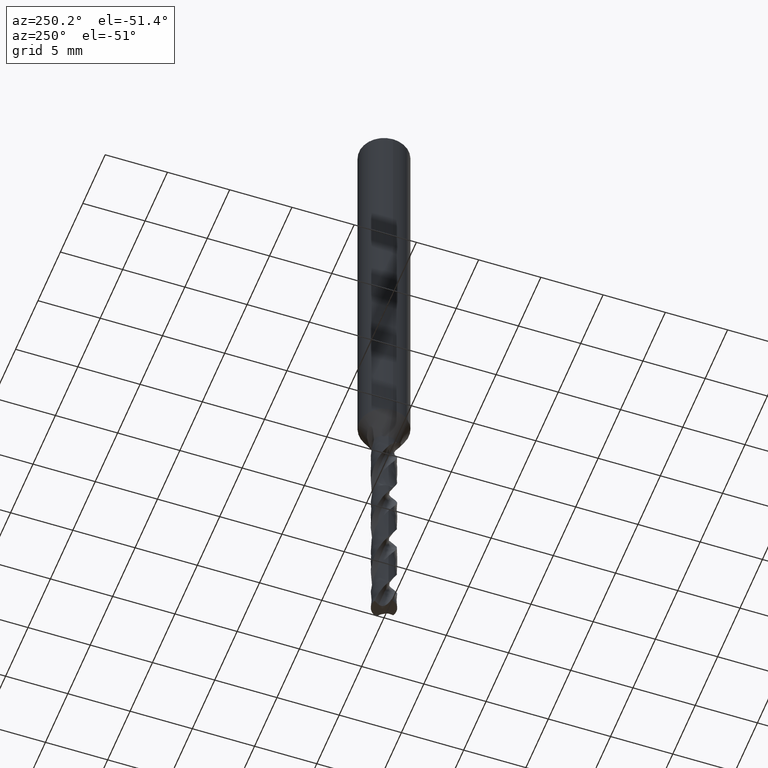
[diagram: clean part render]
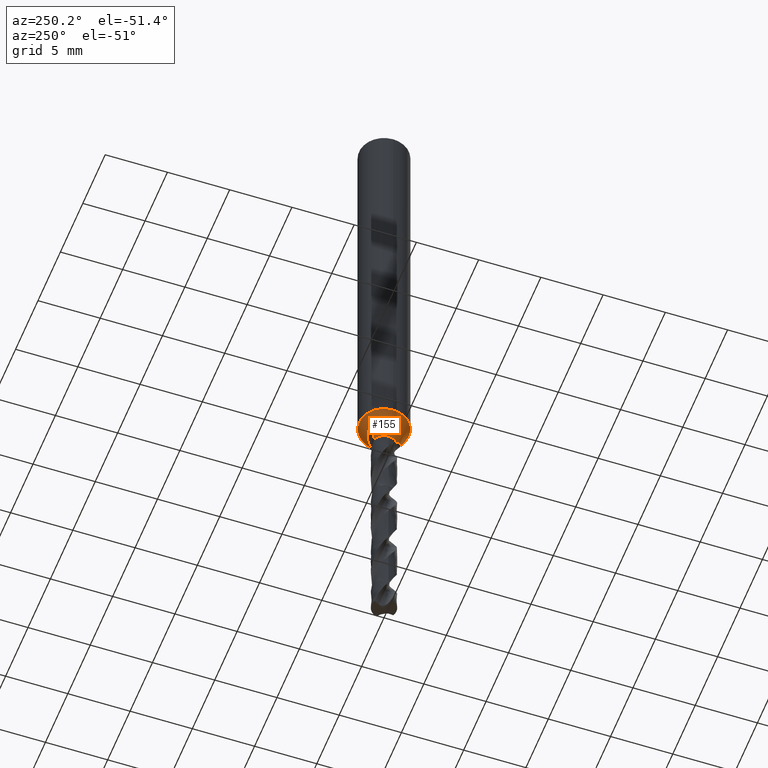
[diagram: same view with one face highlighted and labeled with its STEP entity id]
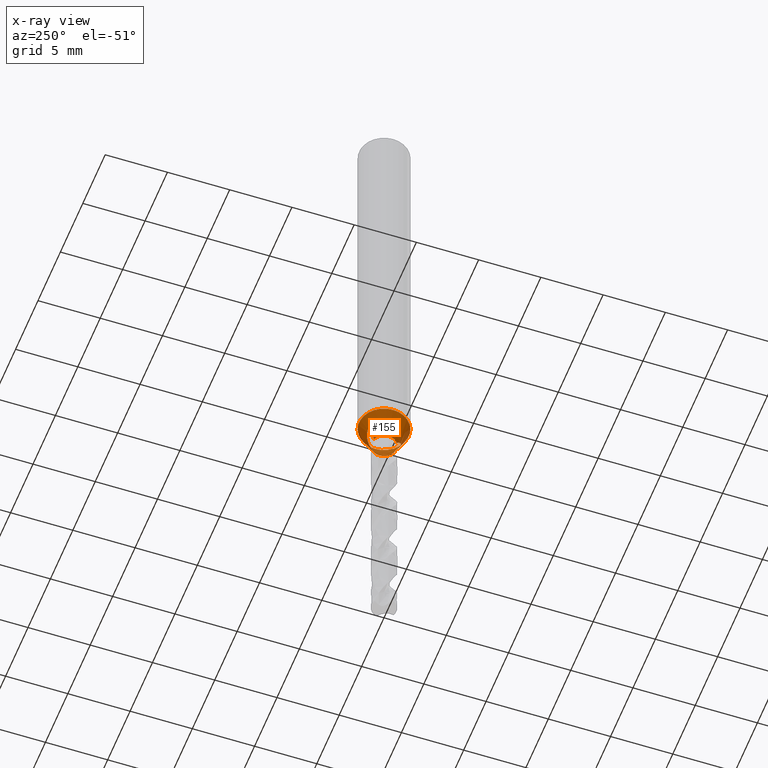
[diagram: x-ray of the same camera — body ghosted, the highlighted face saturated]
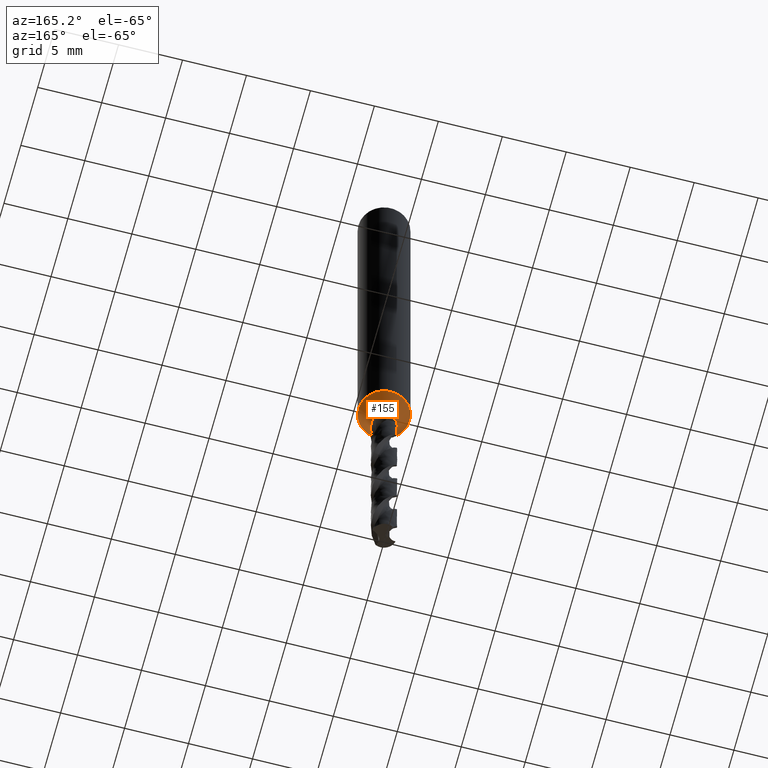
[diagram: same view with one face highlighted and labeled with its STEP entity id]
A machine part, auxiliary view. The second image highlights one B-rep face of the part: STEP entity #155.
The next image is the same camera in x-ray: the body ghosted, the highlighted face saturated — about 0% of this face is hidden behind the body in this view.
A second angle (auxiliary view) of the same face is appended — the face is thin or edge-on in the first view.
In plain terms, the highlighted face is a freeform B-spline surface patch.
Its self-contained STEP definition (entity closure, byte-faithful):
#75 = VERTEX_POINT('', #76);
#76 = CARTESIAN_POINT('', (-0.591817481824011, -0.806071999394274, -35.));
#92 = EDGE_CURVE('', #75, #93, #95, .T.);
#93 = VERTEX_POINT('', #94);
#94 = CARTESIAN_POINT('', (-1., 2.20436423846524E-15, -35.));
#95 = CIRCLE('', #96, 1.);
#96 = AXIS2_PLACEMENT_3D('', #97, #98, #99);
#97 = CARTESIAN_POINT('', (1.31228980982913E-31, 2.14313189850787E-15, -35.));
#98 = DIRECTION('', (3.74939945665464E-33, 6.12323399573677E-17, -1.));
#99 = DIRECTION('', (-1., 6.12323399573677E-17, 0.));
#155 = ADVANCED_FACE('', (#156), #453, .T.);
#156 = FACE_OUTER_BOUND('', #157, .T.);
#157 = EDGE_LOOP('', (#158, #220, #227, #235, #242, #243, #244, #307, #315, #375, #384, #447));
#158 = ORIENTED_EDGE('', *, *, #159, .T.);
#159 = EDGE_CURVE('', #160, #162, #164, .T.);
#160 = VERTEX_POINT('', #161);
#161 = CARTESIAN_POINT('', (-0.617920832866343, 1.36681156137551, -34.));
#162 = VERTEX_POINT('', #163);
#163 = CARTESIAN_POINT('', (-0.331958743086903, 0.943293905889446, -35.));
#164 = B_SPLINE_CURVE_WITH_KNOTS('', 3, (#165, #166, #167, #168, #169, #170, #171, #172, #173, #174, #175, #176, #177, #178, #179, #180, #181, #182, #183, #184, #185, #186, #187, #188, #189, #190, #191, #192, #193, #194, #195, #196, #197, #198, #199, #200, #201, #202, #203, #204, #205, #206, #207, #208, #209, #210, #211, #212, #213, #214, #215, #216, #217, #218, #219), .UNSPECIFIED., .F., .U., (4, 3, 3, 3, 3, 3, 3, 3, 3, 3, 3, 3, 3, 3, 3, 3, 3, 3, 4), (0., 0.0588911643957096, 0.0979158289586575, 0.136880173538422, 0.175733608893818, 0.214499473809937, 0.253254789604853, 0.29203928233206, 0.350223809298474, 0.40847560048926, 0.466769756107257, 0.525087116476367, 0.612548264496639, 0.700018298727447, 0.787477819754552, 0.918539601772212, 1.04950935738774, 1.13685224630636, 1.26536439439795), .UNSPECIFIED.);
#165 = CARTESIAN_POINT('', (-0.61792083286445, 1.36681156137637, -34.));
#166 = CARTESIAN_POINT('', (-0.635800658990749, 1.35870831318167, -34.000036395021));
#167 = CARTESIAN_POINT('', (-0.653376253065681, 1.34937417651786, -34.0017680621019));
#168 = CARTESIAN_POINT('', (-0.669450063447985, 1.33894779556622, -34.0060430285643));
#169 = CARTESIAN_POINT('', (-0.680101492484148, 1.33203867730683, -34.0088758666296));
#170 = CARTESIAN_POINT('', (-0.69020916957125, 1.32456319198491, -34.0128795070472));
#171 = CARTESIAN_POINT('', (-0.699196204021835, 1.31679235222071, -34.0181767788244));
#172 = CARTESIAN_POINT('', (-0.708169347314789, 1.30903352375575, -34.0234658626685));
#173 = CARTESIAN_POINT('', (-0.716144768904178, 1.30085806409737, -34.0301497504289));
#174 = CARTESIAN_POINT('', (-0.722629820049481, 1.29275820444224, -34.0379617612344));
#175 = CARTESIAN_POINT('', (-0.729096411959803, 1.28468140045921, -34.0457515357089));
#176 = CARTESIAN_POINT('', (-0.734192260115983, 1.27655299337775, -34.0547829843043));
#177 = CARTESIAN_POINT('', (-0.737865603272705, 1.26880348719645, -34.0644878214425));
#178 = CARTESIAN_POINT('', (-0.741530667205958, 1.26107144736413, -34.0741707851776));
#179 = CARTESIAN_POINT('', (-0.74385828458744, 1.25360500313276, -34.0846414949844));
#180 = CARTESIAN_POINT('', (-0.745106303488796, 1.24658243788895, -34.0954166027109));
#181 = CARTESIAN_POINT('', (-0.74635398277429, 1.23956178365349, -34.1061887782723));
#182 = CARTESIAN_POINT('', (-0.746548847542719, 1.23291443222517, -34.1173584800148));
#183 = CARTESIAN_POINT('', (-0.745979053974197, 1.22665590499373, -34.1286452965722));
#184 = CARTESIAN_POINT('', (-0.745408831436692, 1.22039266603123, -34.1399406104074));
#185 = CARTESIAN_POINT('', (-0.744073081665066, 1.2144843835929, -34.1514106530685));
#186 = CARTESIAN_POINT('', (-0.742191978930671, 1.20889058988892, -34.1629131899704));
#187 = CARTESIAN_POINT('', (-0.739369947106099, 1.20049877610647, -34.1801693050176));
#188 = CARTESIAN_POINT('', (-0.735318042550322, 1.19277434578036, -34.1975702195878));
#189 = CARTESIAN_POINT('', (-0.730505995916992, 1.185552692081, -34.2149153005546));
#190 = CARTESIAN_POINT('', (-0.725688386316988, 1.17832268978863, -34.2322804333029));
#191 = CARTESIAN_POINT('', (-0.720089585524881, 1.17157722642208, -34.2496409615589));
#192 = CARTESIAN_POINT('', (-0.713978854503516, 1.16518474275374, -34.266927524251));
#193 = CARTESIAN_POINT('', (-0.707863679367828, 1.15878761006254, -34.2842266588367));
#194 = CARTESIAN_POINT('', (-0.701224712109173, 1.15273722820153, -34.3014742523666));
#195 = CARTESIAN_POINT('', (-0.694224489758976, 1.14693707056438, -34.3186478888323));
#196 = CARTESIAN_POINT('', (-0.687221480878712, 1.14113460409862, -34.3358283614886));
#197 = CARTESIAN_POINT('', (-0.679850818428989, 1.13557989709194, -34.3529455563477));
#198 = CARTESIAN_POINT('', (-0.672216837694347, 1.13020187860936, -34.3699948568173));
#199 = CARTESIAN_POINT('', (-0.66076781608585, 1.12213622427276, -34.3955644536333));
#200 = CARTESIAN_POINT('', (-0.648724012137892, 1.11446139085692, -34.4209945287333));
#201 = CARTESIAN_POINT('', (-0.636305698922064, 1.10700768898931, -34.4462960500777));
#202 = CARTESIAN_POINT('', (-0.623886123983193, 1.09955322981214, -34.4716001421025));
#203 = CARTESIAN_POINT('', (-0.611084619300103, 1.09231991346067, -34.4967833632641));
#204 = CARTESIAN_POINT('', (-0.598035280638496, 1.08519283272638, -34.5218638608107));
#205 = CARTESIAN_POINT('', (-0.584987510403799, 1.07806660861062, -34.5469413438805));
#206 = CARTESIAN_POINT('', (-0.571688548685774, 1.0710470098289, -34.5719189830604));
#207 = CARTESIAN_POINT('', (-0.558229510535337, 1.06405086774115, -34.5968150836249));
#208 = CARTESIAN_POINT('', (-0.538060574054501, 1.05356685366812, -34.6341229406421));
#209 = CARTESIAN_POINT('', (-0.517533016239149, 1.04313213164391, -34.6712512207321));
#210 = CARTESIAN_POINT('', (-0.496852674989937, 1.03255304761282, -34.7082509938659));
#211 = CARTESIAN_POINT('', (-0.476186854658803, 1.02198139179632, -34.7452247872217));
#212 = CARTESIAN_POINT('', (-0.455364662548233, 1.01126737418957, -34.7820714218523));
#213 = CARTESIAN_POINT('', (-0.434534062451182, 1.00027772308205, -34.8188302452816));
#214 = CARTESIAN_POINT('', (-0.420642269022738, 0.992948795335119, -34.8433444685577));
#215 = CARTESIAN_POINT('', (-0.406745256817231, 0.9854983427282, -34.8678198867242));
#216 = CARTESIAN_POINT('', (-0.392878139873077, 0.977897395540952, -34.892265150456));
#217 = CARTESIAN_POINT('', (-0.372474727432814, 0.966713725494566, -34.9282327419994));
#218 = CARTESIAN_POINT('', (-0.352135147954025, 0.955202819847367, -34.9641373200761));
#219 = CARTESIAN_POINT('', (-0.331958743086903, 0.943293905889446, -35.));
#220 = ORIENTED_EDGE('', *, *, #221, .F.);
#221 = EDGE_CURVE('', #93, #162, #222, .T.);
#222 = CIRCLE('', #223, 1.);
#223 = AXIS2_PLACEMENT_3D('', #224, #225, #226);
#224 = CARTESIAN_POINT('', (1.31228980982913E-31, 2.14313189850787E-15, -35.));
#225 = DIRECTION('', (3.74939945665464E-33, 6.12323399573677E-17, -1.));
#226 = DIRECTION('', (-1., 6.12323399573677E-17, 0.));
#227 = ORIENTED_EDGE('', *, *, #228, .F.);
#228 = EDGE_CURVE('', #229, #93, #231, .T.);
#229 = VERTEX_POINT('', #230);
#230 = CARTESIAN_POINT('', (-2., 2.14313189850787E-15, -33.));
#231 = LINE('', #232, #233);
#232 = CARTESIAN_POINT('', (-2., 2.14313189850787E-15, -33.));
#233 = VECTOR('', #234, 2.23606797749979);
#234 = DIRECTION('', (1., 6.1232339957368E-17, -2.));
#235 = ORIENTED_EDGE('', *, *, #236, .T.);
#236 = EDGE_CURVE('', #229, #229, #237, .T.);
#237 = CIRCLE('', #238, 2.);
#238 = AXIS2_PLACEMENT_3D('', #239, #240, #241);
#239 = CARTESIAN_POINT('', (1.23730182069603E-31, 2.02066721859313E-15, -33.));
#240 = DIRECTION('', (3.74939945665464E-33, 6.12323399573677E-17, -1.));
#241 = DIRECTION('', (-1., 6.12323399573677E-17, 0.));
#242 = ORIENTED_EDGE('', *, *, #228, .T.);
#243 = ORIENTED_EDGE('', *, *, #92, .F.);
#244 = ORIENTED_EDGE('', *, *, #245, .F.);
#245 = EDGE_CURVE('', #246, #75, #248, .T.);
#246 = VERTEX_POINT('', #247);
#247 = CARTESIAN_POINT('', (0.616762329456505, -1.36733471723766, -34.));
#248 = B_SPLINE_CURVE_WITH_KNOTS('', 3, (#249, #250, #251, #252, #253, #254, #255, #256, #257, #258, #259, #260, #261, #262, #263, #264, #265, #266, #267, #268, #269, #270, #271, #272, #273, #274, #275, #276, #277, #278, #279, #280, #281, #282, #283, #284, #285, #286, #287, #288, #289, #290, #291, #292, #293, #294, #295, #296, #297, #298, #299, #300, #301, #302, #303, #304, #305, #306), .UNSPECIFIED., .F., .U., (4, 3, 3, 3, 3, 3, 3, 3, 3, 3, 3, 3, 3, 3, 3, 3, 3, 3, 3, 4), (0., 0.0585419136673409, 0.116754271049404, 0.174817087141347, 0.232807004977644, 0.319438025137276, 0.406001822753364, 0.492539387381927, 0.621579900559889, 0.679497090844375, 0.696759700101749, 0.827111464483455, 0.957380423424537, 1.08759699848642, 1.21777631433685, 1.34793383795529, 1.4780795596363, 1.60822381923256, 1.73837496330183, 1.81537473370406), .UNSPECIFIED.);
#249 = CARTESIAN_POINT('', (0.616762329453611, -1.36733471723896, -34.));
#250 = CARTESIAN_POINT('', (0.598966866149474, -1.37534191762475, -34.0000360644344));
#251 = CARTESIAN_POINT('', (0.580637086937141, -1.38226925414508, -34.0017096563512));
#252 = CARTESIAN_POINT('', (0.56226045413286, -1.38823880715888, -34.0044407507221));
#253 = CARTESIAN_POINT('', (0.5439872708823, -1.39417475512643, -34.0071564706499));
#254 = CARTESIAN_POINT('', (0.525548436530267, -1.39920401434935, -34.010938657349));
#255 = CARTESIAN_POINT('', (0.507159739453468, -1.40345184793441, -34.0154477114361));
#256 = CARTESIAN_POINT('', (0.488818280963254, -1.40768876929149, -34.0199451822478));
#257 = CARTESIAN_POINT('', (0.470462818632078, -1.41116240826904, -34.0251845693835));
#258 = CARTESIAN_POINT('', (0.452204887924969, -1.41396976826197, -34.0309599085078));
#259 = CARTESIAN_POINT('', (0.433969880172513, -1.41677360359558, -34.036727996655));
#260 = CARTESIAN_POINT('', (0.415792787679894, -1.4189183033943, -34.0430449335558));
#261 = CARTESIAN_POINT('', (0.397740572571541, -1.42047692428775, -34.0497781402047));
#262 = CARTESIAN_POINT('', (0.370772405184366, -1.42280534486636, -34.0598368639053));
#263 = CARTESIAN_POINT('', (0.344013794799918, -1.42383315905525, -34.070847800082));
#264 = CARTESIAN_POINT('', (0.317606791358891, -1.42373783789499, -34.0825329445074));
#265 = CARTESIAN_POINT('', (0.291220278799022, -1.42364259070051, -34.0942090216826));
#266 = CARTESIAN_POINT('', (0.265122725464303, -1.42242434282476, -34.1065889721254));
#267 = CARTESIAN_POINT('', (0.239412726479044, -1.42021192776979, -34.1194997841488));
#268 = CARTESIAN_POINT('', (0.213710518858087, -1.41800018318282, -34.1324066835762));
#269 = CARTESIAN_POINT('', (0.188350202563959, -1.41479026435713, -34.14586845718));
#270 = CARTESIAN_POINT('', (0.163410158756462, -1.41068284667452, -34.1597683376974));
#271 = CARTESIAN_POINT('', (0.126220805607759, -1.40455806967306, -34.1804951483348));
#272 = CARTESIAN_POINT('', (0.0898713240533891, -1.39642196814179, -34.2022474434128));
#273 = CARTESIAN_POINT('', (0.054579589598828, -1.38654337461408, -34.2247656233846));
#274 = CARTESIAN_POINT('', (0.0387396177207292, -1.38210957032273, -34.2348724470647));
#275 = CARTESIAN_POINT('', (0.0230982944245356, -1.37732054365937, -34.24514365289));
#276 = CARTESIAN_POINT('', (0.00767337135384027, -1.3721976243862, -34.2555618418343));
#277 = CARTESIAN_POINT('', (0.00307586898042514, -1.37067070373906, -34.2586670533273));
#278 = CARTESIAN_POINT('', (-0.00150285545959022, -1.36911397388827, -34.2617856334068));
#279 = CARTESIAN_POINT('', (-0.00606234696028197, -1.36752797862148, -34.2649171680819));
#280 = CARTESIAN_POINT('', (-0.040491543203874, -1.35555196281502, -34.2885637132847));
#281 = CARTESIAN_POINT('', (-0.0738667322376224, -1.34189119585791, -34.3129767045976));
#282 = CARTESIAN_POINT('', (-0.106001837782688, -1.32676809339173, -34.3380082920823));
#283 = CARTESIAN_POINT('', (-0.138116529629583, -1.31165459781632, -34.3630239783505));
#284 = CARTESIAN_POINT('', (-0.169060284997965, -1.2950468929825, -34.3887141491839));
#285 = CARTESIAN_POINT('', (-0.198668764115699, -1.27715951844817, -34.4149617307297));
#286 = CARTESIAN_POINT('', (-0.228265337043301, -1.2592793368021, -34.4411987575727));
#287 = CARTESIAN_POINT('', (-0.256587604887583, -1.24008536205268, -34.4680439564349));
#288 = CARTESIAN_POINT('', (-0.283490208278884, -1.21979004560933, -34.495400667925));
#289 = CARTESIAN_POINT('', (-0.310385113957451, -1.19950053631831, -34.5227495517672));
#290 = CARTESIAN_POINT('', (-0.335910292571857, -1.17807239784723, -34.5506612599001));
#291 = CARTESIAN_POINT('', (-0.359935089562166, -1.15572093086629, -34.5790546154524));
#292 = CARTESIAN_POINT('', (-0.383955864761868, -1.13337320555776, -34.6074432179102));
#293 = CARTESIAN_POINT('', (-0.406520998518876, -1.11006335638915, -34.6363620427148));
#294 = CARTESIAN_POINT('', (-0.42752346258072, -1.08601203478972, -34.6657348473105));
#295 = CARTESIAN_POINT('', (-0.44852402225963, -1.06196289402614, -34.6951049885488));
#296 = CARTESIAN_POINT('', (-0.467997440406288, -1.03713144842968, -34.7249793302812));
#297 = CARTESIAN_POINT('', (-0.485850536068148, -1.01174539202772, -34.7552911265048));
#298 = CARTESIAN_POINT('', (-0.503703431164532, -0.986359620818132, -34.7856025821991));
#299 = CARTESIAN_POINT('', (-0.519967581602901, -0.960377518505131, -34.8164000328904));
#300 = CARTESIAN_POINT('', (-0.534580403930961, -0.93403168688474, -34.8476139747975));
#301 = CARTESIAN_POINT('', (-0.549193999259543, -0.907684461601907, -34.8788295678841));
#302 = CARTESIAN_POINT('', (-0.562179059091284, -0.880931036541862, -34.9105124035211));
#303 = CARTESIAN_POINT('', (-0.573488483113452, -0.854011311444783, -34.9425993483627));
#304 = CARTESIAN_POINT('', (-0.580179342877428, -0.838085115278093, -34.961582565171));
#305 = CARTESIAN_POINT('', (-0.586290184456672, -0.822088818607941, -34.9807208834435));
#306 = CARTESIAN_POINT('', (-0.591817481824012, -0.806071999394274, -35.));
#307 = ORIENTED_EDGE('', *, *, #308, .F.);
#308 = EDGE_CURVE('', #309, #246, #311, .T.);
#309 = VERTEX_POINT('', #310);
#310 = CARTESIAN_POINT('', (0.617920832866343, -1.36681156137551, -34.));
#311 = LINE('', #312, #313);
#312 = CARTESIAN_POINT('', (0.617920832866343, -1.36681156137551, -34.));
#313 = VECTOR('', #314, 0.00127114995445285);
#314 = DIRECTION('', (-0.00115850340983858, -0.00052315586214613, 0.));
#315 = ORIENTED_EDGE('', *, *, #316, .T.);
#316 = EDGE_CURVE('', #309, #317, #319, .T.);
#317 = VERTEX_POINT('', #318);
#318 = CARTESIAN_POINT('', (0.331958743086903, -0.943293905889442, -35.));
#319 = B_SPLINE_CURVE_WITH_KNOTS('', 3, (#320, #321, #322, #323, #324, #325, #326, #327, #328, #329, #330, #331, #332, #333, #334, #335, #336, #337, #338, #339, #340, #341, #342, #343, #344, #345, #346, #347, #348, #349, #350, #351, #352, #353, #354, #355, #356, #357, #358, #359, #360, #361, #362, #363, #364, #365, #366, #367, #368, #369, #370, #371, #372, #373, #374), .UNSPECIFIED., .F., .U., (4, 3, 3, 3, 3, 3, 3, 3, 3, 3, 3, 3, 3, 3, 3, 3, 3, 3, 4), (0., 0.058891164395709, 0.0979158289586562, 0.13688017353842, 0.175733608893815, 0.214499473809932, 0.25325478960485, 0.292039282332056, 0.350223809298471, 0.408475600489256, 0.466769756107254, 0.525087116476363, 0.612548264496632, 0.70001829872744, 0.787477819754545, 0.918539601772204, 1.04950935738773, 1.13685224630635, 1.26536439439765), .UNSPECIFIED.);
#320 = CARTESIAN_POINT('', (0.617920832864727, -1.36681156137624, -34.));
#321 = CARTESIAN_POINT('', (0.63580065899102, -1.35870831318153, -34.0000363950211));
#322 = CARTESIAN_POINT('', (0.653376253065944, -1.34937417651771, -34.001768062102));
#323 = CARTESIAN_POINT('', (0.669450063448234, -1.33894779556606, -34.0060430285643));
#324 = CARTESIAN_POINT('', (0.680101492484386, -1.33203867730666, -34.0088758666297));
#325 = CARTESIAN_POINT('', (0.690209169571478, -1.32456319198474, -34.0128795070473));
#326 = CARTESIAN_POINT('', (0.699196204022046, -1.31679235222053, -34.0181767788245));
#327 = CARTESIAN_POINT('', (0.708169347314984, -1.30903352375556, -34.0234658626687));
#328 = CARTESIAN_POINT('', (0.716144768904349, -1.30085806409717, -34.0301497504291));
#329 = CARTESIAN_POINT('', (0.722629820049631, -1.29275820444205, -34.0379617612345));
#330 = CARTESIAN_POINT('', (0.72909641195993, -1.28468140045901, -34.0457515357091));
#331 = CARTESIAN_POINT('', (0.73419226011609, -1.27655299337756, -34.0547829843045));
#332 = CARTESIAN_POINT('', (0.737865603272791, -1.26880348719627, -34.0644878214427));
#333 = CARTESIAN_POINT('', (0.741530667206023, -1.26107144736395, -34.0741707851779));
#334 = CARTESIAN_POINT('', (0.743858284587488, -1.25360500313259, -34.0846414949846));
#335 = CARTESIAN_POINT('', (0.745106303488827, -1.24658243788878, -34.0954166027111));
#336 = CARTESIAN_POINT('', (0.746353982774304, -1.23956178365333, -34.1061887782725));
#337 = CARTESIAN_POINT('', (0.746548847542717, -1.23291443222501, -34.1173584800151));
#338 = CARTESIAN_POINT('', (0.745979053974183, -1.22665590499358, -34.1286452965725));
#339 = CARTESIAN_POINT('', (0.745408831436667, -1.22039266603108, -34.1399406104076));
#340 = CARTESIAN_POINT('', (0.744073081665033, -1.21448438359276, -34.1514106530688));
#341 = CARTESIAN_POINT('', (0.742191978930629, -1.20889058988879, -34.1629131899707));
#342 = CARTESIAN_POINT('', (0.739369947106045, -1.20049877610634, -34.1801693050179));
#343 = CARTESIAN_POINT('', (0.735318042550255, -1.19277434578024, -34.1975702195881));
#344 = CARTESIAN_POINT('', (0.730505995916916, -1.18555269208088, -34.2149153005549));
#345 = CARTESIAN_POINT('', (0.725688386316904, -1.17832268978852, -34.2322804333032));
#346 = CARTESIAN_POINT('', (0.720089585524792, -1.17157722642198, -34.2496409615592));
#347 = CARTESIAN_POINT('', (0.713978854503422, -1.16518474275364, -34.2669275242512));
#348 = CARTESIAN_POINT('', (0.707863679367728, -1.15878761006244, -34.2842266588369));
#349 = CARTESIAN_POINT('', (0.701224712109068, -1.15273722820143, -34.3014742523668));
#350 = CARTESIAN_POINT('', (0.694224489758867, -1.14693707056429, -34.3186478888325));
#351 = CARTESIAN_POINT('', (0.687221480878599, -1.14113460409852, -34.3358283614889));
#352 = CARTESIAN_POINT('', (0.679850818428874, -1.13557989709185, -34.3529455563479));
#353 = CARTESIAN_POINT('', (0.672216837694229, -1.13020187860927, -34.3699948568175));
#354 = CARTESIAN_POINT('', (0.660767816085729, -1.12213622427267, -34.3955644536335));
#355 = CARTESIAN_POINT('', (0.648724012137767, -1.11446139085684, -34.4209945287335));
#356 = CARTESIAN_POINT('', (0.636305698921936, -1.10700768898923, -34.446296050078));
#357 = CARTESIAN_POINT('', (0.623886123983062, -1.09955322981206, -34.4716001421027));
#358 = CARTESIAN_POINT('', (0.611084619299972, -1.09231991346059, -34.4967833632643));
#359 = CARTESIAN_POINT('', (0.598035280638363, -1.08519283272631, -34.5218638608109));
#360 = CARTESIAN_POINT('', (0.584987510403665, -1.07806660861054, -34.5469413438808));
#361 = CARTESIAN_POINT('', (0.571688548685639, -1.07104700982882, -34.5719189830606));
#362 = CARTESIAN_POINT('', (0.558229510535201, -1.06405086774108, -34.5968150836251));
#363 = CARTESIAN_POINT('', (0.538060574054363, -1.05356685366804, -34.6341229406424));
#364 = CARTESIAN_POINT('', (0.51753301623901, -1.04313213164383, -34.6712512207324));
#365 = CARTESIAN_POINT('', (0.496852674989798, -1.03255304761274, -34.7082509938661));
#366 = CARTESIAN_POINT('', (0.476186854658664, -1.02198139179624, -34.7452247872219));
#367 = CARTESIAN_POINT('', (0.455364662548093, -1.0112673741895, -34.7820714218526));
#368 = CARTESIAN_POINT('', (0.434534062451043, -1.00027772308197, -34.8188302452819));
#369 = CARTESIAN_POINT('', (0.420642269022598, -0.99294879533504, -34.8433444685579));
#370 = CARTESIAN_POINT('', (0.406745256817091, -0.98549834272812, -34.8678198867244));
#371 = CARTESIAN_POINT('', (0.392878139872938, -0.977897395540872, -34.8922651504563));
#372 = CARTESIAN_POINT('', (0.372474727432722, -0.966713725494509, -34.9282327419996));
#373 = CARTESIAN_POINT('', (0.352135147953978, -0.955202819847336, -34.9641373200761));
#374 = CARTESIAN_POINT('', (0.331958743086903, -0.943293905889442, -35.));
#375 = ORIENTED_EDGE('', *, *, #376, .F.);
#376 = EDGE_CURVE('', #377, #317, #379, .T.);
#377 = VERTEX_POINT('', #378);
#378 = CARTESIAN_POINT('', (0.591817481824011, 0.806071999394278, -35.));
#379 = CIRCLE('', #380, 1.);
#380 = AXIS2_PLACEMENT_3D('', #381, #382, #383);
#381 = CARTESIAN_POINT('', (1.31228980982913E-31, 2.14313189850787E-15, -35.));
#382 = DIRECTION('', (3.74939945665464E-33, 6.12323399573677E-17, -1.));
#383 = DIRECTION('', (-1., 6.12323399573677E-17, 0.));
#384 = ORIENTED_EDGE('', *, *, #385, .F.);
#385 = EDGE_CURVE('', #386, #377, #388, .T.);
#386 = VERTEX_POINT('', #387);
#387 = CARTESIAN_POINT('', (-0.616762329456505, 1.36733471723766, -34.));
#388 = B_SPLINE_CURVE_WITH_KNOTS('', 3, (#389, #390, #391, #392, #393, #394, #395, #396, #397, #398, #399, #400, #401, #402, #403, #404, #405, #406, #407, #408, #409, #410, #411, #412, #413, #414, #415, #416, #417, #418, #419, #420, #421, #422, #423, #424, #425, #426, #427, #428, #429, #430, #431, #432, #433, #434, #435, #436, #437, #438, #439, #440, #441, #442, #443, #444, #445, #446), .UNSPECIFIED., .F., .U., (4, 3, 3, 3, 3, 3, 3, 3, 3, 3, 3, 3, 3, 3, 3, 3, 3, 3, 3, 4), (0., 0.0585419136673395, 0.116754271049403, 0.174817087141347, 0.232807004977642, 0.319438025137277, 0.406001822753366, 0.492539387381928, 0.621579900559891, 0.679497090844376, 0.69675970010175, 0.827111464483456, 0.957380423424539, 1.08759699848642, 1.21777631433685, 1.34793383795529, 1.47807955963629, 1.60822381923256, 1.73837496330183, 1.81537473370402), .UNSPECIFIED.);
#389 = CARTESIAN_POINT('', (-0.616762329453582, 1.36733471723898, -34.));
#390 = CARTESIAN_POINT('', (-0.598966866149445, 1.37534191762477, -34.0000360644344));
#391 = CARTESIAN_POINT('', (-0.580637086937112, 1.38226925414509, -34.0017096563512));
#392 = CARTESIAN_POINT('', (-0.562260454132831, 1.38823880715889, -34.0044407507221));
#393 = CARTESIAN_POINT('', (-0.543987270882271, 1.39417475512645, -34.0071564706499));
#394 = CARTESIAN_POINT('', (-0.525548436530238, 1.39920401434936, -34.0109386573491));
#395 = CARTESIAN_POINT('', (-0.507159739453439, 1.40345184793442, -34.0154477114361));
#396 = CARTESIAN_POINT('', (-0.488818280963224, 1.4076887692915, -34.0199451822478));
#397 = CARTESIAN_POINT('', (-0.470462818632048, 1.41116240826905, -34.0251845693835));
#398 = CARTESIAN_POINT('', (-0.452204887924939, 1.41396976826198, -34.0309599085078));
#399 = CARTESIAN_POINT('', (-0.433969880172483, 1.41677360359559, -34.036727996655));
#400 = CARTESIAN_POINT('', (-0.415792787679865, 1.41891830339431, -34.0430449335558));
#401 = CARTESIAN_POINT('', (-0.397740572571513, 1.42047692428776, -34.0497781402047));
#402 = CARTESIAN_POINT('', (-0.370772405184337, 1.42280534486636, -34.0598368639054));
#403 = CARTESIAN_POINT('', (-0.344013794799889, 1.42383315905526, -34.070847800082));
#404 = CARTESIAN_POINT('', (-0.317606791358861, 1.42373783789499, -34.0825329445074));
#405 = CARTESIAN_POINT('', (-0.291220278798991, 1.42364259070051, -34.0942090216826));
#406 = CARTESIAN_POINT('', (-0.265122725464273, 1.42242434282476, -34.1065889721254));
#407 = CARTESIAN_POINT('', (-0.239412726479014, 1.42021192776979, -34.1194997841488));
#408 = CARTESIAN_POINT('', (-0.213710518858058, 1.41800018318282, -34.1324066835762));
#409 = CARTESIAN_POINT('', (-0.18835020256393, 1.41479026435713, -34.14586845718));
#410 = CARTESIAN_POINT('', (-0.163410158756433, 1.41068284667452, -34.1597683376974));
#411 = CARTESIAN_POINT('', (-0.126220805607731, 1.40455806967305, -34.1804951483349));
#412 = CARTESIAN_POINT('', (-0.0898713240533613, 1.39642196814178, -34.2022474434129));
#413 = CARTESIAN_POINT('', (-0.0545795895988008, 1.38654337461408, -34.2247656233846));
#414 = CARTESIAN_POINT('', (-0.0387396177207024, 1.38210957032273, -34.2348724470647));
#415 = CARTESIAN_POINT('', (-0.0230982944245093, 1.37732054365936, -34.2451436528901));
#416 = CARTESIAN_POINT('', (-0.00767337135381437, 1.37219762438619, -34.2555618418343));
#417 = CARTESIAN_POINT('', (-0.00307586898039923, 1.37067070373905, -34.2586670533273));
#418 = CARTESIAN_POINT('', (0.0015028554596161, 1.36911397388827, -34.2617856334069));
#419 = CARTESIAN_POINT('', (0.00606234696030786, 1.36752797862148, -34.264917168082));
#420 = CARTESIAN_POINT('', (0.0404915432038994, 1.35555196281501, -34.2885637132847));
#421 = CARTESIAN_POINT('', (0.0738667322376469, 1.34189119585791, -34.3129767045976));
#422 = CARTESIAN_POINT('', (0.106001837782713, 1.32676809339172, -34.3380082920823));
#423 = CARTESIAN_POINT('', (0.138116529629607, 1.31165459781631, -34.3630239783506));
#424 = CARTESIAN_POINT('', (0.169060284997989, 1.29504689298249, -34.3887141491839));
#425 = CARTESIAN_POINT('', (0.198668764115722, 1.27715951844816, -34.4149617307297));
#426 = CARTESIAN_POINT('', (0.228265337043323, 1.25927933680209, -34.4411987575727));
#427 = CARTESIAN_POINT('', (0.256587604887606, 1.24008536205267, -34.468043956435));
#428 = CARTESIAN_POINT('', (0.283490208278906, 1.21979004560932, -34.495400667925));
#429 = CARTESIAN_POINT('', (0.310385113957472, 1.19950053631829, -34.5227495517672));
#430 = CARTESIAN_POINT('', (0.335910292571876, 1.17807239784722, -34.5506612599002));
#431 = CARTESIAN_POINT('', (0.359935089562184, 1.15572093086628, -34.5790546154524));
#432 = CARTESIAN_POINT('', (0.383955864761885, 1.13337320555775, -34.6074432179102));
#433 = CARTESIAN_POINT('', (0.406520998518893, 1.11006335638913, -34.6363620427148));
#434 = CARTESIAN_POINT('', (0.427523462580736, 1.08601203478971, -34.6657348473105));
#435 = CARTESIAN_POINT('', (0.448524022259645, 1.06196289402613, -34.6951049885488));
#436 = CARTESIAN_POINT('', (0.467997440406302, 1.03713144842966, -34.7249793302813));
#437 = CARTESIAN_POINT('', (0.485850536068162, 1.01174539202771, -34.7552911265048));
#438 = CARTESIAN_POINT('', (0.503703431164546, 0.986359620818118, -34.7856025821992));
#439 = CARTESIAN_POINT('', (0.519967581602913, 0.960377518505116, -34.8164000328904));
#440 = CARTESIAN_POINT('', (0.534580403930972, 0.934031686884724, -34.8476139747975));
#441 = CARTESIAN_POINT('', (0.549193999259553, 0.907684461601891, -34.8788295678842));
#442 = CARTESIAN_POINT('', (0.562179059091294, 0.880931036541847, -34.9105124035211));
#443 = CARTESIAN_POINT('', (0.573488483113461, 0.854011311444768, -34.9425993483627));
#444 = CARTESIAN_POINT('', (0.580179342877433, 0.838085115278085, -34.961582565171));
#445 = CARTESIAN_POINT('', (0.586290184456674, 0.822088818607939, -34.9807208834435));
#446 = CARTESIAN_POINT('', (0.591817481824012, 0.806071999394278, -35.));
#447 = ORIENTED_EDGE('', *, *, #448, .F.);
#448 = EDGE_CURVE('', #160, #386, #449, .T.);
#449 = LINE('', #450, #451);
#450 = CARTESIAN_POINT('', (-0.617920832866343, 1.36681156137551, -34.));
#451 = VECTOR('', #452, 0.00127114995445177);
#452 = DIRECTION('', (0.0011585034098377, 0.000523155862145464, 0.));
#453 = (
   BOUNDED_SURFACE ()
   B_SPLINE_SURFACE (2, 1, ((#454, #455), (#456, #457), (#458, #459), (#460, #461), (#462, #463), (#464, #465), (#466, #467), (#468, #469), (#470, #471)), .UNSPECIFIED., .T., .F., .U.)
   B_SPLINE_SURFACE_WITH_KNOTS ((3, 2, 2, 2, 3), (2, 2), (0., 0.25, 0.5, 0.75, 1.), (0., 1.), .UNSPECIFIED.)
   GEOMETRIC_REPRESENTATION_ITEM ()
   RATIONAL_B_SPLINE_SURFACE (((1., 1.), (0.707106781186548, 0.707106781186548), (1., 1.), (0.707106781186548, 0.707106781186548), (1., 1.), (0.707106781186548, 0.707106781186548), (1., 1.), (0.707106781186548, 0.707106781186548), (1., 1.)))
   REPRESENTATION_ITEM ('')
   SURFACE ()
);
#454 = CARTESIAN_POINT('', (-2., 2.14313189850787E-15, -33.));
#455 = CARTESIAN_POINT('', (-1., 2.20436423846524E-15, -35.));
#456 = CARTESIAN_POINT('', (-2., 2., -33.));
#457 = CARTESIAN_POINT('', (-1., 1., -35.));
#458 = CARTESIAN_POINT('', (1.23259516440783E-31, 2., -33.));
#459 = CARTESIAN_POINT('', (1.35585468084861E-31, 1., -35.));
#460 = CARTESIAN_POINT('', (2., 2., -33.));
#461 = CARTESIAN_POINT('', (1., 1., -35.));
#462 = CARTESIAN_POINT('', (2., 2.14313189850787E-15, -33.));
#463 = CARTESIAN_POINT('', (1., 2.20436423846524E-15, -35.));
#464 = CARTESIAN_POINT('', (2., -2., -33.));
#465 = CARTESIAN_POINT('', (1., -0.999999999999997, -35.));
#466 = CARTESIAN_POINT('', (2.44929359829471E-16, -2., -33.));
#467 = CARTESIAN_POINT('', (1.22464679914735E-16, -0.999999999999998, -35.));
#468 = CARTESIAN_POINT('', (-2., -2., -33.));
#469 = CARTESIAN_POINT('', (-1., -0.999999999999998, -35.));
#470 = CARTESIAN_POINT('', (-2., 2.14313189850787E-15, -33.));
#471 = CARTESIAN_POINT('', (-1., 2.20436423846524E-15, -35.));